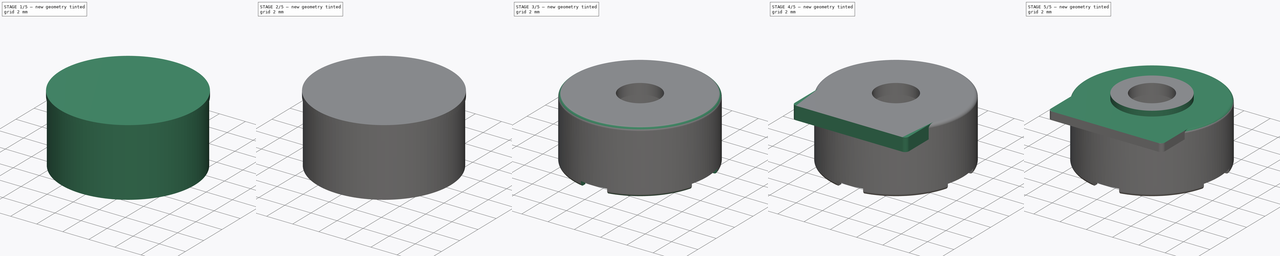
[diagram: build sequence overview — one tinted view per stage of 5, left to right]
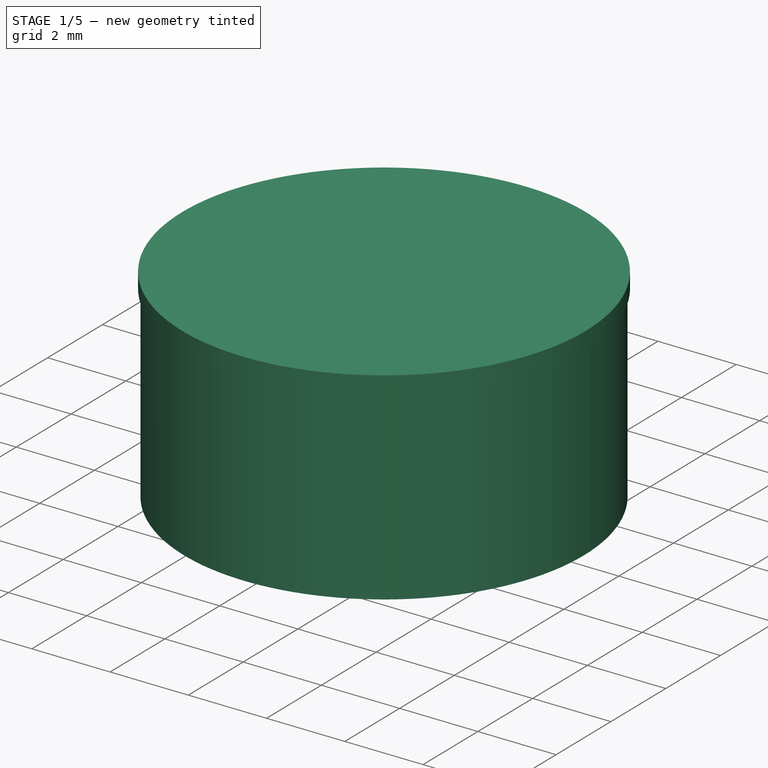
[diagram: stage 1 of 5 — iso view after this stage's code; geometry added in this stage tinted green]
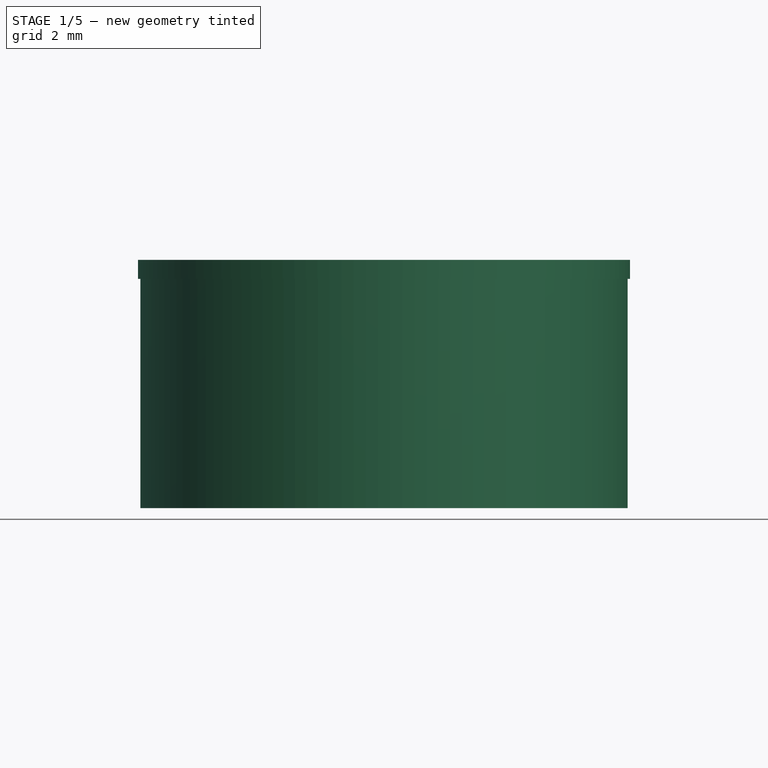
[diagram: stage 1 of 5 — front view after this stage's code; geometry added in this stage tinted green]
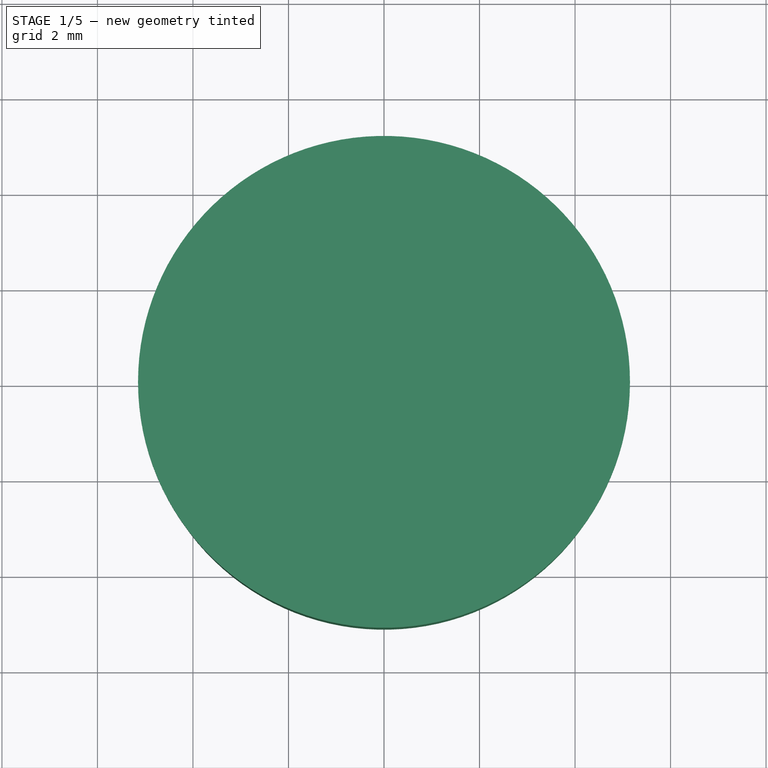
[diagram: stage 1 of 5 — top view after this stage's code; geometry added in this stage tinted green]
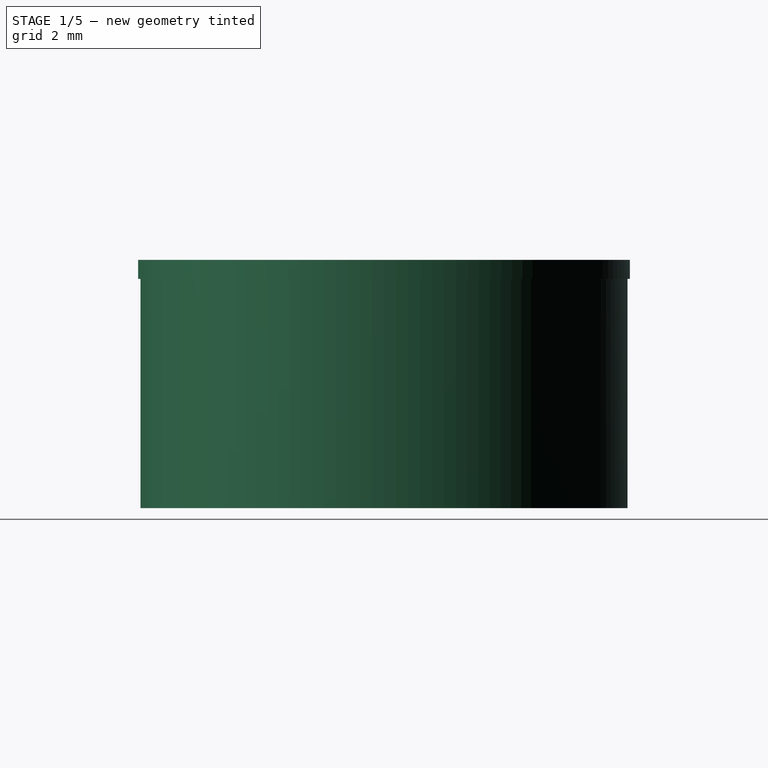
[diagram: stage 1 of 5 — right view after this stage's code; geometry added in this stage tinted green]
FCSTD DOCUMENT  (FreeCAD 0.16R6703 (Git))
Label: Core
License: CreativeCommons Attribution-ShareAlike
LicenseURL: http://creativecommons.org/licenses/by-sa/4.0/
objects: Part::Cylinder×5, Sketcher::SketchObject×4, Part::Cut×3, PartDesign::Pocket×3, Part::MultiCommon×3, Part::MultiFuse×2, Part::Fillet×2, PartDesign::Pad×1
note: 27 computed .brp shape members not serialized (recipe doc carries the construction recipe); baked Part::Feature solids carry a one-line shape summary decoded from their .brp

FEATURE [Part::Cylinder] Cylinder001
  Angle = 360
  Height = 0.8
  Placement = pos=(0,0,4) rot=(0,0,1;0rad)
  Radius = 1.5
FEATURE [Part::Cylinder] Cylinder002
  Angle = 360
  Height = 4.8
  Radius = 5.1
FEATURE [Part::Cylinder] Cylinder003
  Angle = 360
  Height = 0.8
  Radius = 4.62
FEATURE [Part::Cylinder] Cylinder004
  Angle = 360
  Height = 0.4
  Placement = pos=(0,0,4.8) rot=(0,0,1;0rad)
  Radius = 5.15
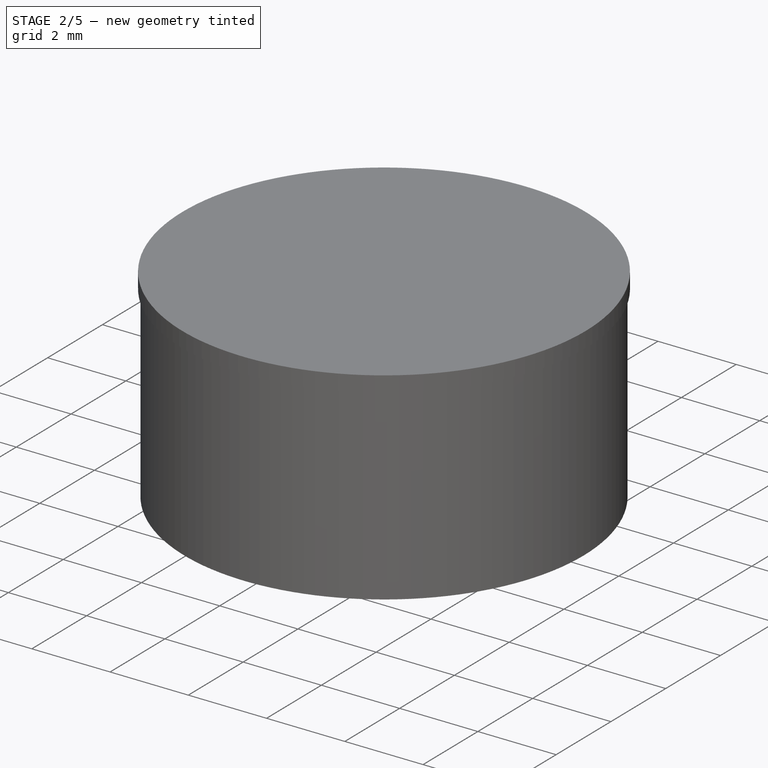
[diagram: stage 2 of 5 — iso view after this stage's code; geometry added in this stage tinted green]
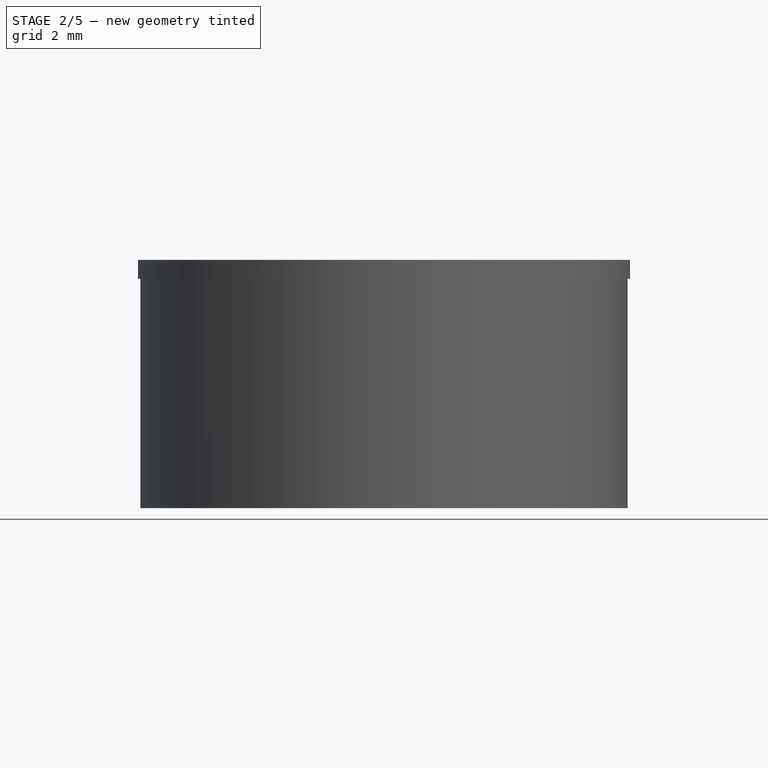
[diagram: stage 2 of 5 — front view after this stage's code; geometry added in this stage tinted green]
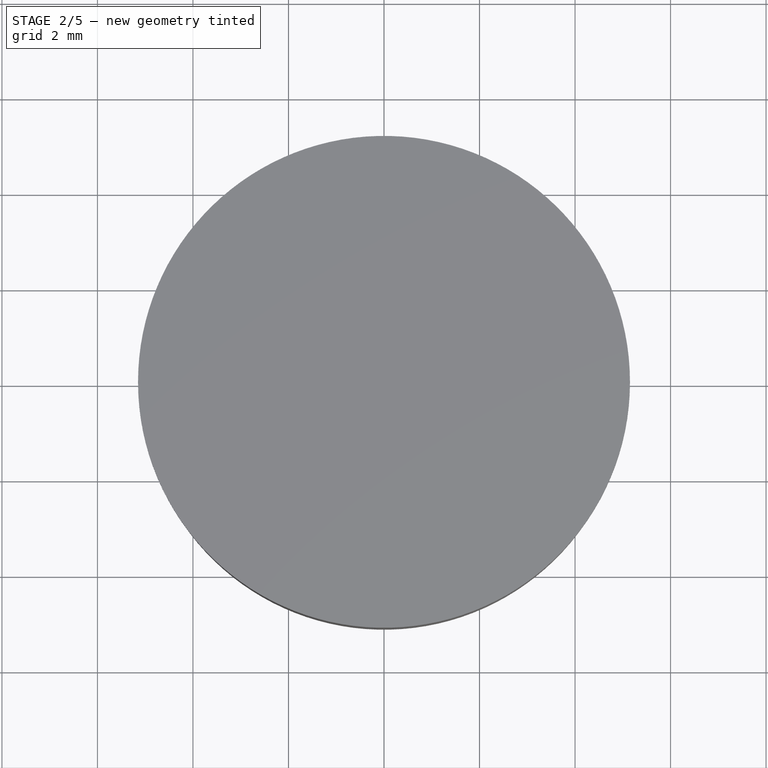
[diagram: stage 2 of 5 — top view after this stage's code; geometry added in this stage tinted green]
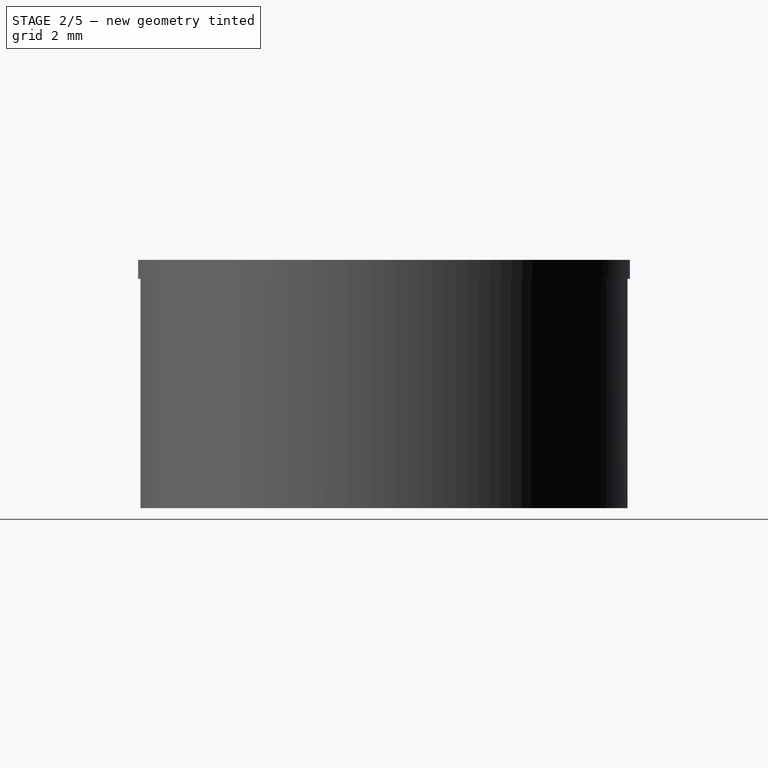
[diagram: stage 2 of 5 — right view after this stage's code; geometry added in this stage tinted green]
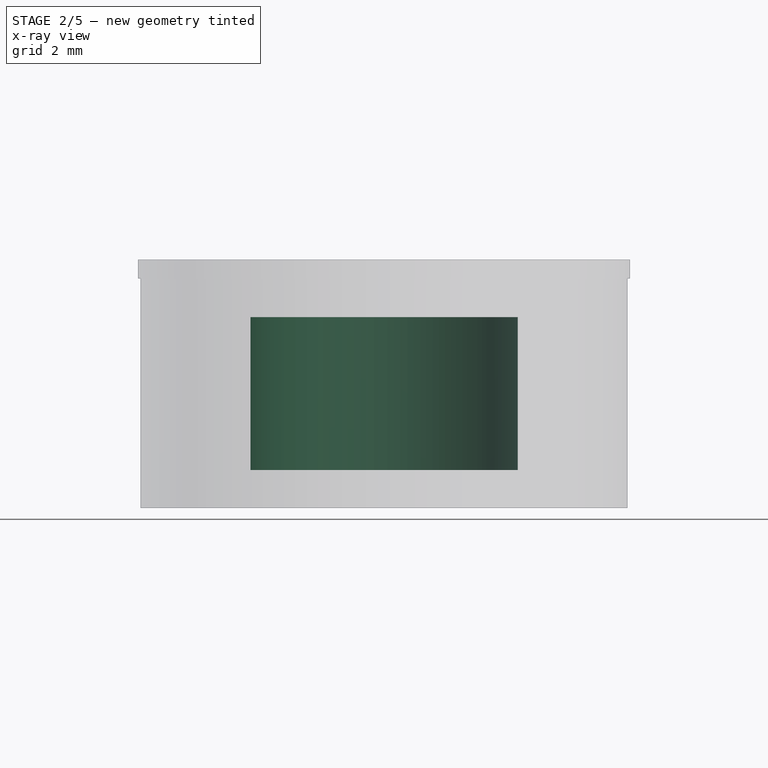
[diagram: stage 2 of 5 — x-ray composite at the front view; earlier geometry ghosted, this stage's added geometry solid]
FEATURE [Part::Cylinder] Cylinder
  Angle = 360
  Height = 4
  Radius = 2.8
FEATURE [Part::MultiFuse] Fusion
  Shapes = -> [Cylinder,Cylinder001]
FEATURE [Part::Cut] Cut
  Base = -> Cylinder002
  Tool = -> Fusion
FEATURE [Part::Cut] Cut001
  Base = -> Cut
  Tool = -> Cylinder003
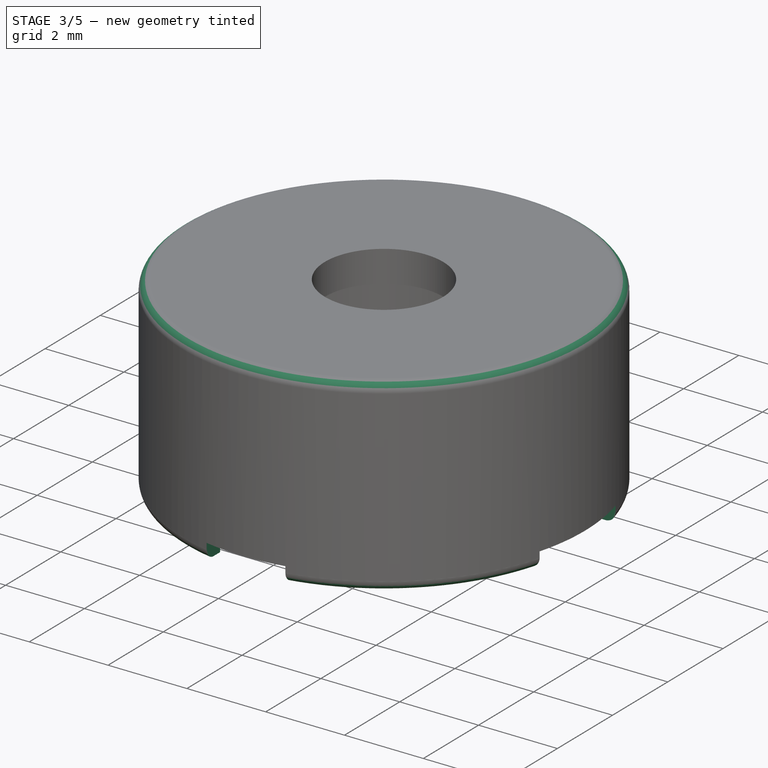
[diagram: stage 3 of 5 — iso view after this stage's code; geometry added in this stage tinted green]
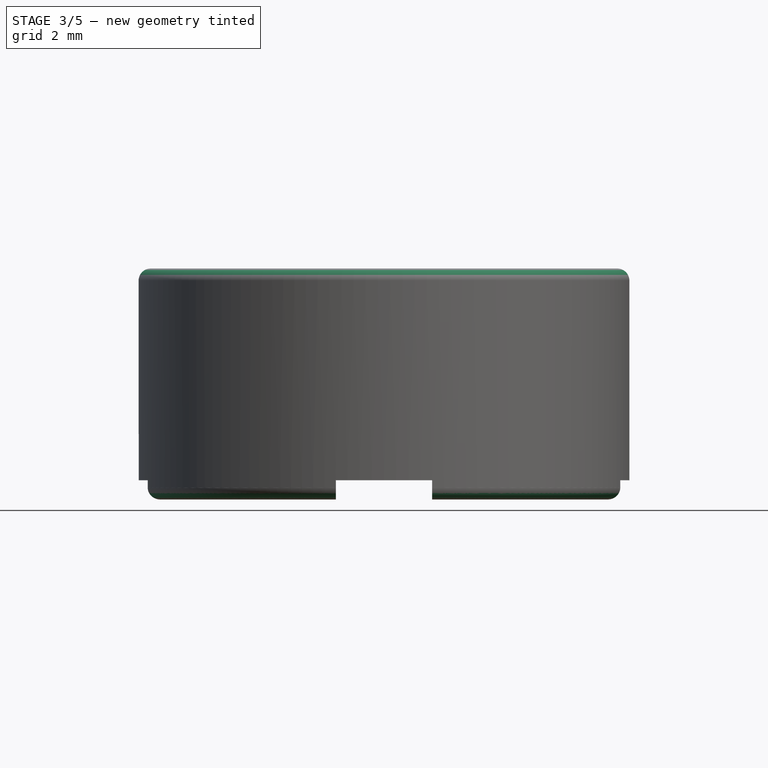
[diagram: stage 3 of 5 — front view after this stage's code; geometry added in this stage tinted green]
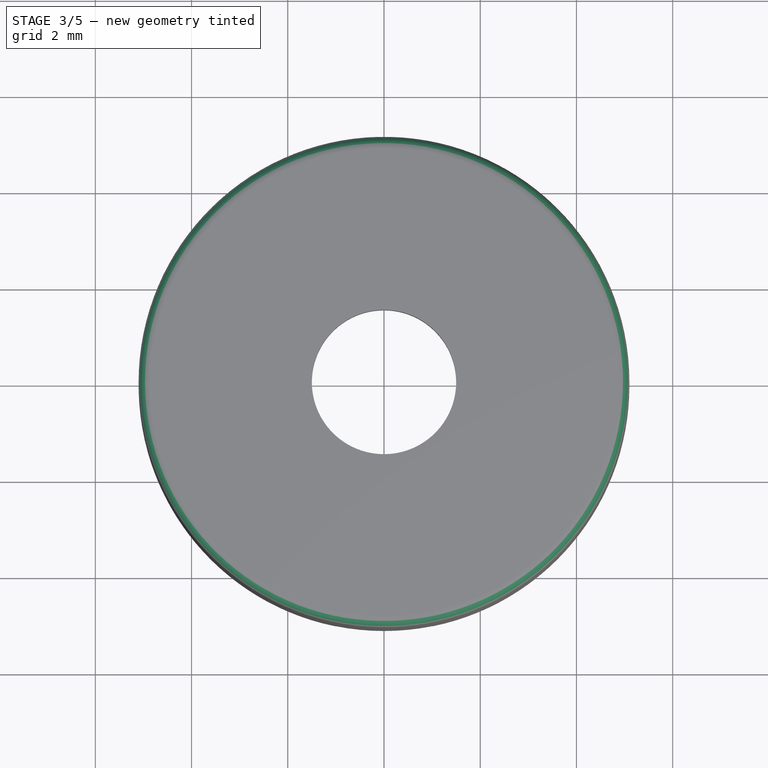
[diagram: stage 3 of 5 — top view after this stage's code; geometry added in this stage tinted green]
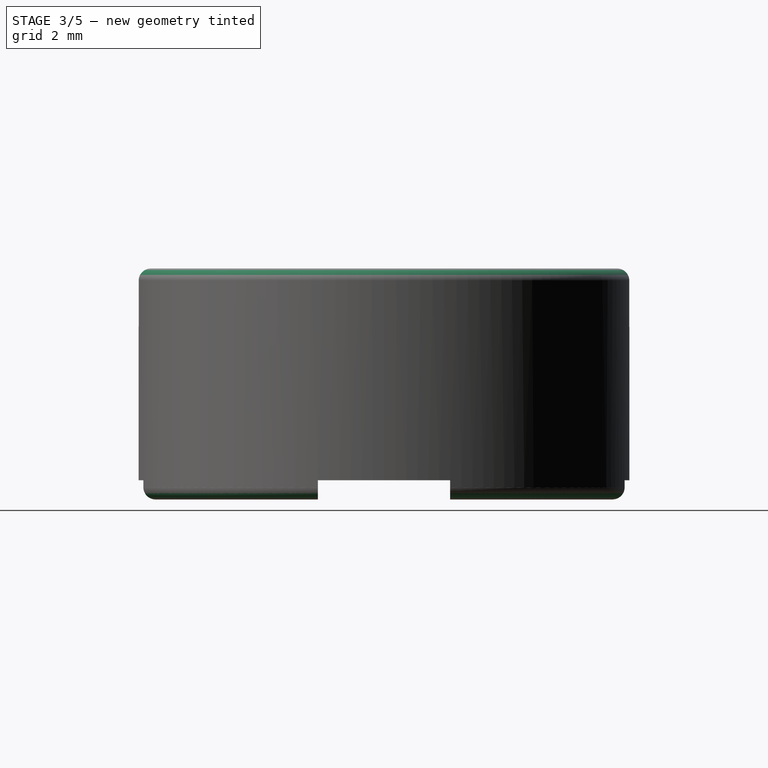
[diagram: stage 3 of 5 — right view after this stage's code; geometry added in this stage tinted green]
FEATURE [Part::Cut] Cut002
  Base = -> Cut001
  Tool = -> Cylinder004
FEATURE [Part::Fillet] Fillet
  Base = -> Cut002
  Edges = 2 edges r=0.25: [Edge2,Edge3]
FEATURE [Sketcher::SketchObject] Sketch
  ExternalGeometry = -> [Fillet]
  Placement = pos=(0,0,0) rot=(1,0,0;3.14159rad)
  Support = -> Fillet [Face4]
  sketch-geometry (16):
    g0: LineSegment StartX=-1 StartY=-4.51048 StartZ=0 EndX=-1 EndY=-6.26048 EndZ=0
    g1: LineSegment StartX=-1 StartY=-6.26048 StartZ=0 EndX=1 EndY=-6.26048 EndZ=0
    g2: LineSegment StartX=1 StartY=-6.26048 StartZ=0 EndX=1 EndY=-4.51048 EndZ=0
    g3: LineSegment StartX=-1 StartY=4.51048 StartZ=0 EndX=-1 EndY=6.26048 EndZ=0
    g4: LineSegment StartX=-1 StartY=6.26048 StartZ=0 EndX=1 EndY=6.26048 EndZ=0
    g5: LineSegment StartX=1 StartY=6.26048 StartZ=0 EndX=1 EndY=4.51048 EndZ=0
    g6: LineSegment StartX=4.41064 StartY=1.375 StartZ=0 EndX=6.16064 EndY=1.375 EndZ=0
    g7: LineSegment StartX=6.16064 StartY=1.375 StartZ=0 EndX=6.16064 EndY=-1.375 EndZ=0
    g8: LineSegment StartX=6.16064 StartY=-1.375 StartZ=0 EndX=4.41064 EndY=-1.375 EndZ=0
    g9: LineSegment StartX=-4.41064 StartY=1.375 StartZ=0 EndX=-6.16064 EndY=1.375 EndZ=0
    g10: LineSegment StartX=-6.16064 StartY=1.375 StartZ=0 EndX=-6.16064 EndY=-1.375 EndZ=0
    g11: LineSegment StartX=-6.16064 StartY=-1.375 StartZ=0 EndX=-4.41064 EndY=-1.375 EndZ=0
    g12: LineSegment StartX=-1 StartY=4.51048 StartZ=0 EndX=1 EndY=4.51048 EndZ=0
    g13: LineSegment StartX=4.41064 StartY=1.375 StartZ=0 EndX=4.41064 EndY=-1.375 EndZ=0
    g14: LineSegment StartX=-4.41064 StartY=1.375 StartZ=0 EndX=-4.41064 EndY=-1.375 EndZ=0
    g15: LineSegment StartX=-1 StartY=-4.51048 StartZ=0 EndX=1 EndY=-4.51048 EndZ=0
  constraints (48):
    c: PointOnObject(g0,g-3)
    c: Vertical(g0)
    c: Coincident(g0,g1)
    c: Horizontal(g1)
    c: Coincident(g1,g2)
    c: PointOnObject(g2,g-3)
    c: Vertical(g2)
    c: PointOnObject(g3,g-3)
    c: Vertical(g3)
    c: Coincident(g3,g4)
    c: Horizontal(g4)
    c: Coincident(g4,g5)
    c: PointOnObject(g5,g-3)
    c: Vertical(g5)
    c: Symmetric(g3,g4,g-2)
    c: Symmetric(g0,g1,g-2)
    c: DistanceX(g4,g4) = 2
    c: DistanceY(g5,g5) = 1.75
    c: PointOnObject(g6,g-3)
    c: Horizontal(g6)
    c: Coincident(g6,g7)
    c: Vertical(g7)
    c: Coincident(g7,g8)
    c: PointOnObject(g8,g-3)
    c: Horizontal(g8)
    c: PointOnObject(g9,g-3)
    c: Horizontal(g9)
    c: Coincident(g9,g10)
    c: Vertical(g10)
    c: Coincident(g10,g11)
    c: PointOnObject(g11,g-3)
    c: Horizontal(g11)
    c: Symmetric(g9,g10,g-1)
    c: Symmetric(g6,g7,g-1)
    c: Equal(g9,g6)
    c: Equal(g10,g7)
    c: Equal(g4,g1)
    c: Equal(g5,g2)
    c: DistanceY(g7,g7) = 2.75
    c: DistanceX(g6,g6) = 1.75
    c: Coincident(g12,g3)
    c: Coincident(g12,g5)
    c: Coincident(g13,g6)
    c: Coincident(g13,g8)
    c: Coincident(g14,g9)
    c: Coincident(g14,g11)
    c: Coincident(g15,g0)
    c: Coincident(g15,g2)
FEATURE [PartDesign::Pocket] Pocket
  Length = 0.4
  Sketch = -> Sketch
  Type = 0
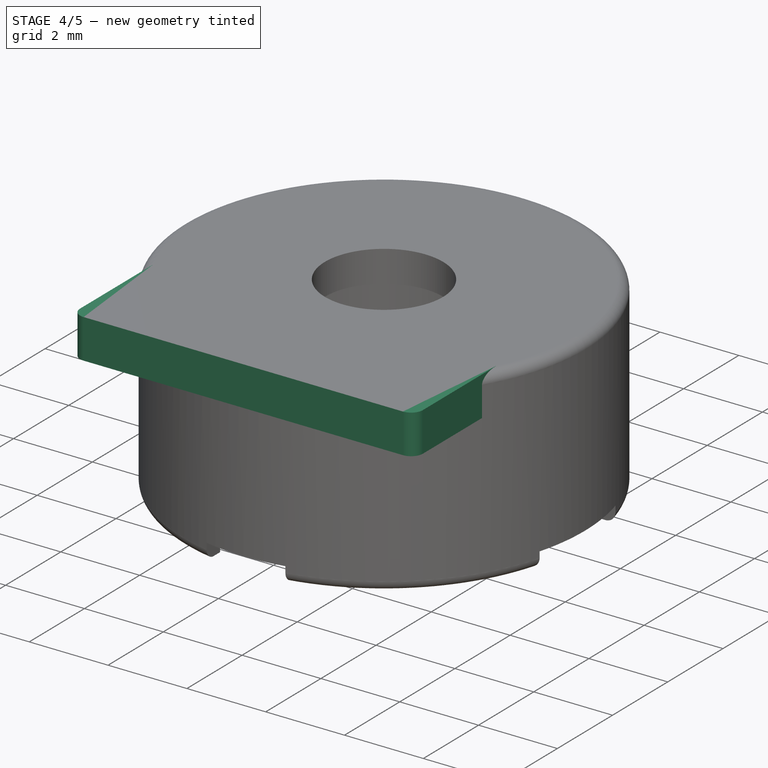
[diagram: stage 4 of 5 — iso view after this stage's code; geometry added in this stage tinted green]
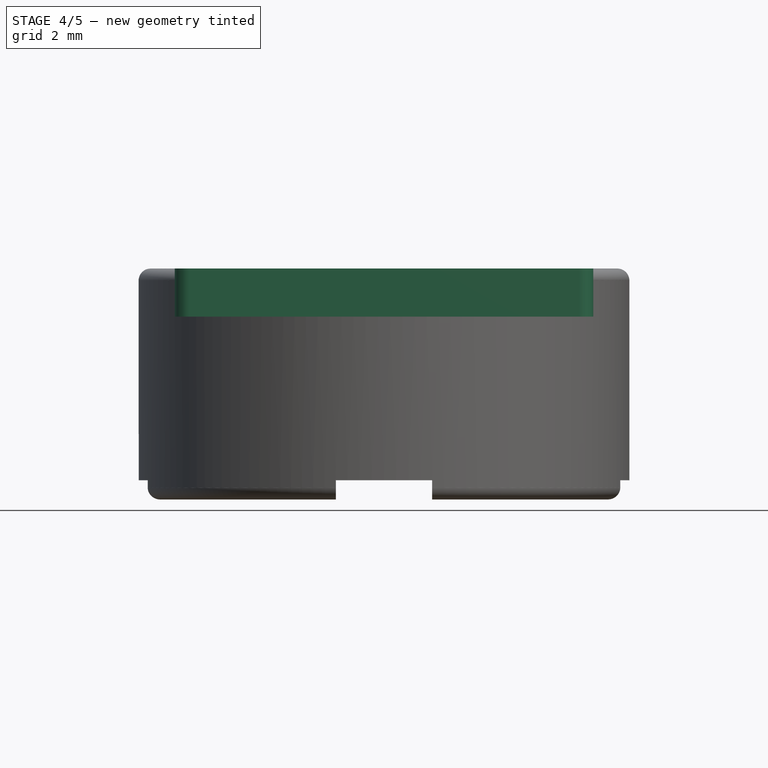
[diagram: stage 4 of 5 — front view after this stage's code; geometry added in this stage tinted green]
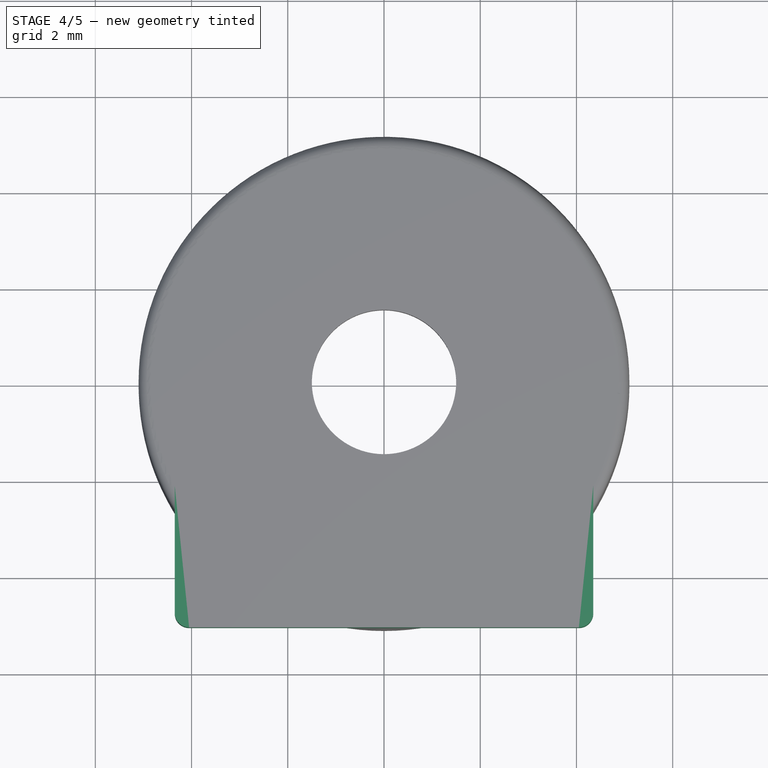
[diagram: stage 4 of 5 — top view after this stage's code; geometry added in this stage tinted green]
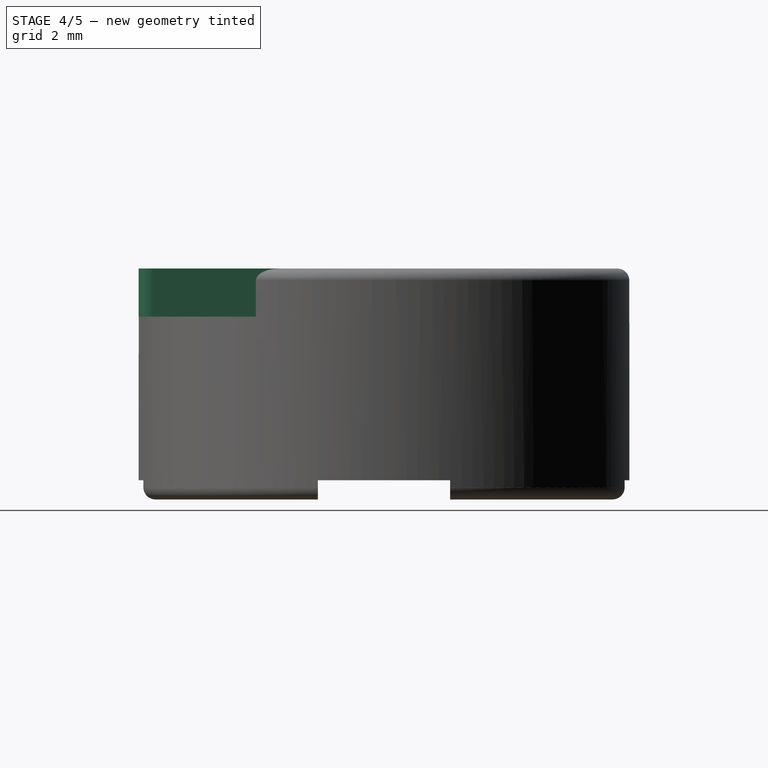
[diagram: stage 4 of 5 — right view after this stage's code; geometry added in this stage tinted green]
FEATURE [Part::MultiCommon] Common
  Shapes = -> [Pocket,Fillet]
FEATURE [Sketcher::SketchObject] Sketch001
  ExternalGeometry = -> [Common]
  Placement = pos=(0,0,4.8) rot=(0,0,1;0rad)
  Support = -> Common [Face24]
  sketch-geometry (4):
    g0: LineSegment StartX=-4.35 StartY=-2.14476 StartZ=0 EndX=-4.35 EndY=-5.1 EndZ=0
    g1: LineSegment StartX=-4.35 StartY=-5.1 StartZ=0 EndX=4.35 EndY=-5.1 EndZ=0
    g2: LineSegment StartX=4.35 StartY=-5.1 StartZ=0 EndX=4.35 EndY=-2.14476 EndZ=0
    g3: ArcOfCircle CenterX=0 CenterY=0 CenterZ=0 NormalX=0 NormalY=0 NormalZ=1 Radius=4.85 StartAngle=3.59966 EndAngle=5.82511
  constraints (13):
    c: PointOnObject(g0,g-3)
    c: Vertical(g0)
    c: Coincident(g0,g1)
    c: Horizontal(g1)
    c: Coincident(g1,g2)
    c: PointOnObject(g2,g-3)
    c: Vertical(g2)
    c: Coincident(g3,g-1)
    c: Coincident(g3,g0)
    c: Coincident(g3,g2)
    c: Symmetric(g0,g1,g-2)
    c: DistanceX(g1,g1) = 8.7
    c: DistanceY(g2,g2) = 2.95524
FEATURE [PartDesign::Pocket] Pocket001
  Length = 1
  Sketch = -> Sketch001
  Type = 0
FEATURE [Part::MultiCommon] Common001
  Shapes = -> [Common,Pocket001]
FEATURE [Sketcher::SketchObject] Sketch002
  ExternalGeometry = -> [Common001]
  Placement = pos=(0,0,3.8) rot=(0,0,1;0rad)
  Support = -> Common001 [Face19]
  sketch-geometry (6):
    g0: LineSegment StartX=-4.35 StartY=-2.14476 StartZ=0 EndX=-4.35 EndY=-4.80068 EndZ=0
    g1: LineSegment StartX=-4.05067 StartY=-5.1 StartZ=0 EndX=4.05067 EndY=-5.1 EndZ=0
    g2: LineSegment StartX=4.35 StartY=-4.80068 StartZ=0 EndX=4.35 EndY=-2.14476 EndZ=0
    g3: ArcOfCircle CenterX=0 CenterY=0 CenterZ=0 NormalX=0 NormalY=0 NormalZ=1 Radius=4.85 StartAngle=3.59966 EndAngle=5.82511
    g4: ArcOfCircle CenterX=4.05067 CenterY=-4.80068 CenterZ=0 NormalX=0 NormalY=0 NormalZ=1 Radius=0.299326 StartAngle=4.71239 EndAngle=6.28319
    g5: ArcOfCircle CenterX=-4.05067 CenterY=-4.80068 CenterZ=0 NormalX=0 NormalY=0 NormalZ=1 Radius=0.299326 StartAngle=3.14159 EndAngle=4.71239
  constraints (15):
    c: Vertical(g0)
    c: Horizontal(g1)
    c: Vertical(g2)
    c: Coincident(g3,g-1)
    c: Coincident(g3,g0)
    c: Coincident(g3,g2)
    c: Tangent(g1,g4) = -1.5708
    c: Tangent(g2,g4) = -1.5708
    c: Tangent(g0,g5) = -1.5708
    c: Tangent(g1,g5) = -1.5708
    c: DistanceX(g0,g2) = 8.7
    c: DistanceY(g1,g2) = 2.95524
    c: Equal(g5,g4)
    c: Radius(g4) = 0.299326
    c: Symmetric(g1,g1,g-2)
FEATURE [PartDesign::Pad] Pad
  Length = 1
  Length2 = 100
  Sketch = -> Sketch002
  Type = 0
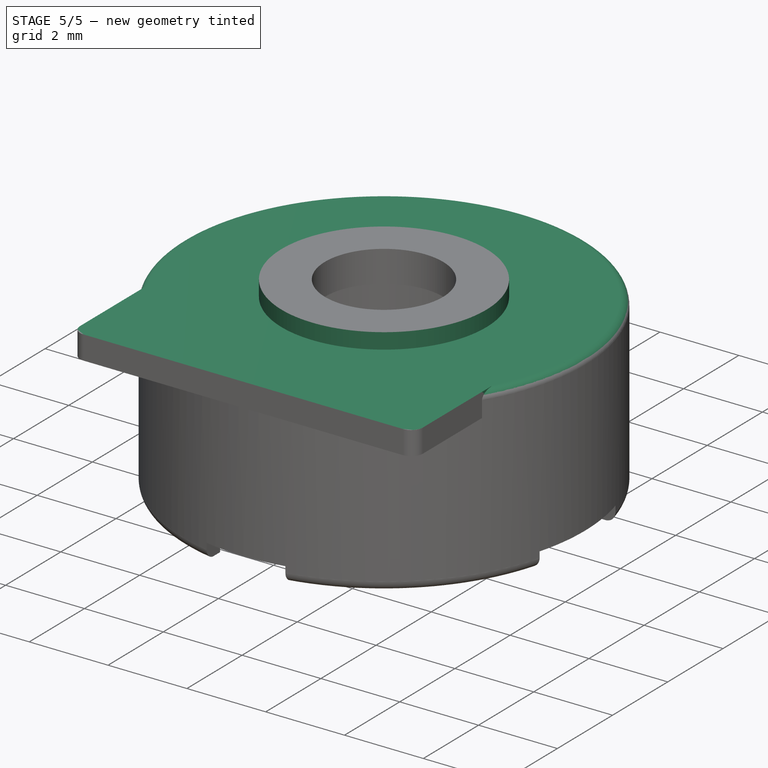
[diagram: stage 5 of 5 — iso view after this stage's code; geometry added in this stage tinted green]
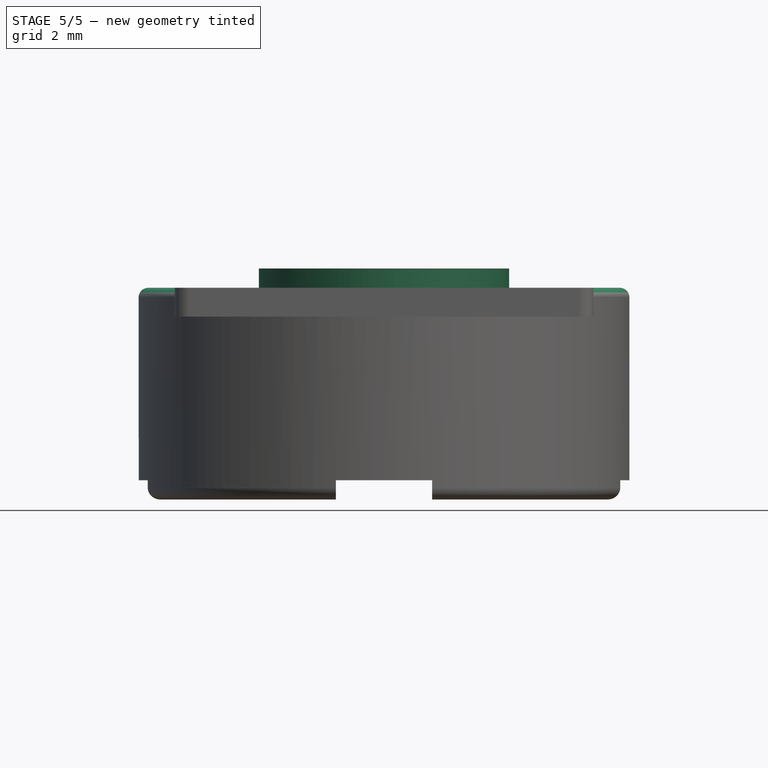
[diagram: stage 5 of 5 — front view after this stage's code; geometry added in this stage tinted green]
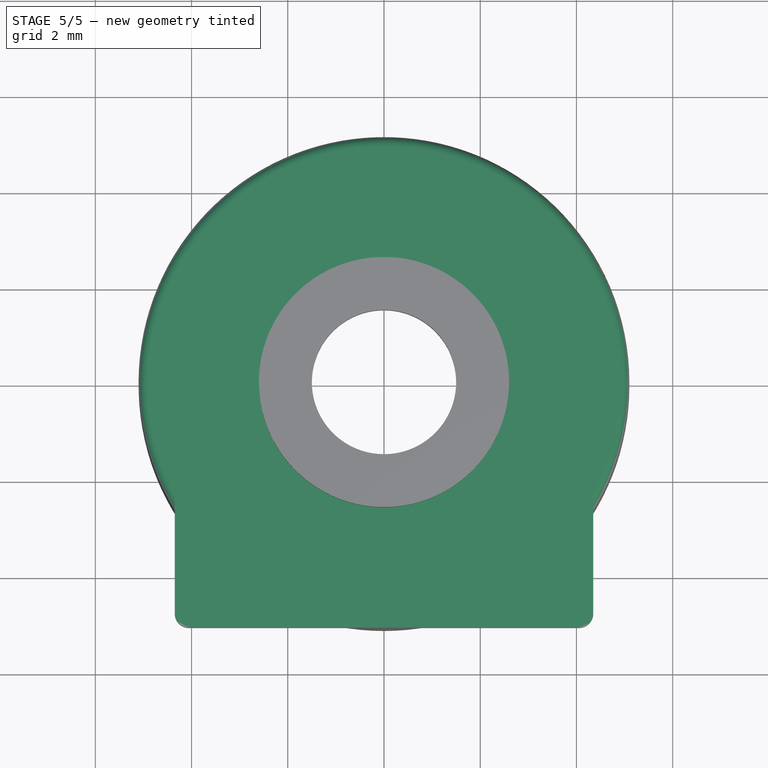
[diagram: stage 5 of 5 — top view after this stage's code; geometry added in this stage tinted green]
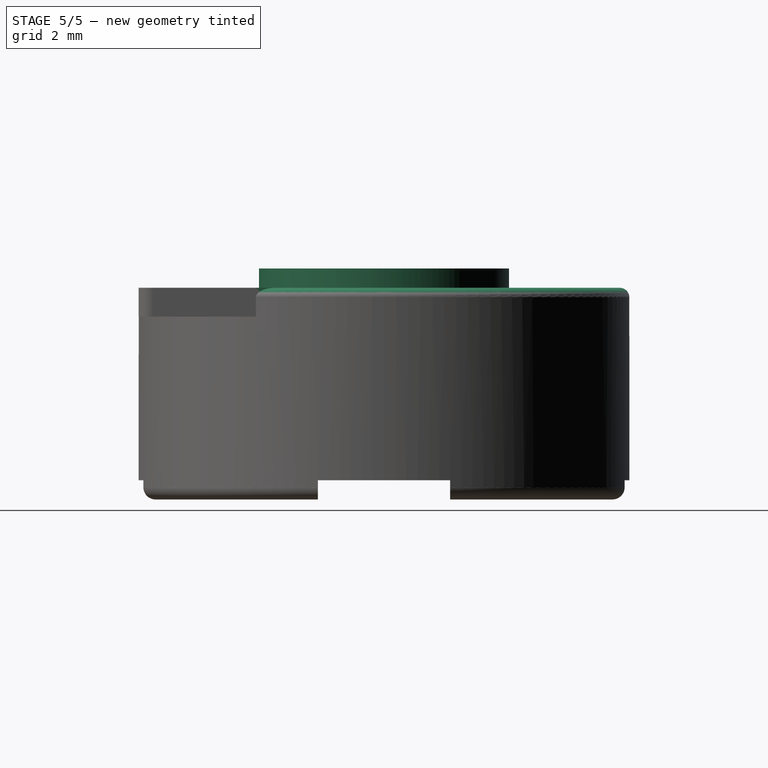
[diagram: stage 5 of 5 — right view after this stage's code; geometry added in this stage tinted green]
FEATURE [Part::MultiFuse] Fusion001
  Shapes = -> [Pad,Common001]
FEATURE [Sketcher::SketchObject] Sketch003
  ExternalGeometry = -> [Fusion001]
  Placement = pos=(0,0,4.8) rot=(0,0,1;0rad)
  Support = -> Fusion001 [Face35]
  sketch-geometry (5):
    g0: LineSegment StartX=-4.35 StartY=-5.1 StartZ=0 EndX=4.35 EndY=-5.1 EndZ=0
    g1: LineSegment StartX=4.35 StartY=-5.1 StartZ=0 EndX=4.35 EndY=-2.75681 EndZ=0
    g2: ArcOfCircle CenterX=0 CenterY=0 CenterZ=0 NormalX=0 NormalY=0 NormalZ=1 Radius=5.15 StartAngle=5.71832 EndAngle=9.98964
    g3: LineSegment StartX=-4.35 StartY=-5.1 StartZ=0 EndX=-4.35 EndY=-2.75681 EndZ=0
    g4: Circle CenterX=0 CenterY=0 CenterZ=0 NormalX=0 NormalY=0 NormalZ=1 Radius=2.6
  constraints (13):
    c: Coincident(g0,g1)
    c: Vertical(g1)
    c: Coincident(g2,g-1)
    c: Coincident(g3,g0)
    c: Coincident(g3,g2)
    c: Vertical(g3)
    c: Symmetric(g0,g0,g-2)
    c: DistanceX(g0,g0) = 8.7
    c: Radius(g2) = 5.15
    c: Coincident(g2,g1)
    c: Tangent(g-3,g0) = -1.5708
    c: Coincident(g4,g-1)
    c: Radius(g4) = 2.6
FEATURE [PartDesign::Pocket] Pocket002
  Length = 0.4
  Sketch = -> Sketch003
  Type = 0
FEATURE [Part::MultiCommon] Common002
  Shapes = -> [Fusion001,Pocket002]
FEATURE [Part::Fillet] Fillet001
  Base = -> Common002
  Edges = 2 edges r=0.2: [Edge17,Edge18]
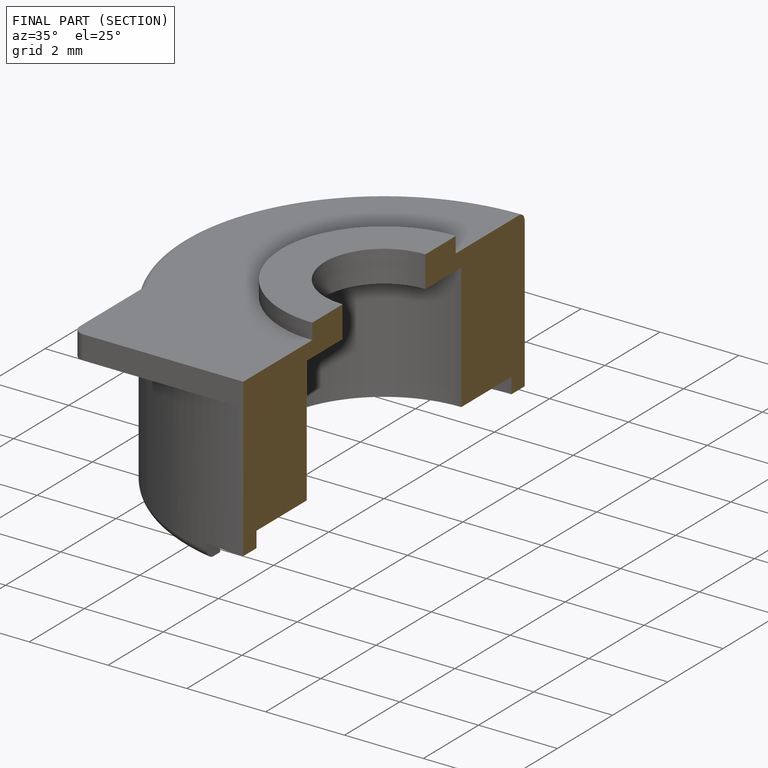
[diagram: finished part — half-section view (interior)]
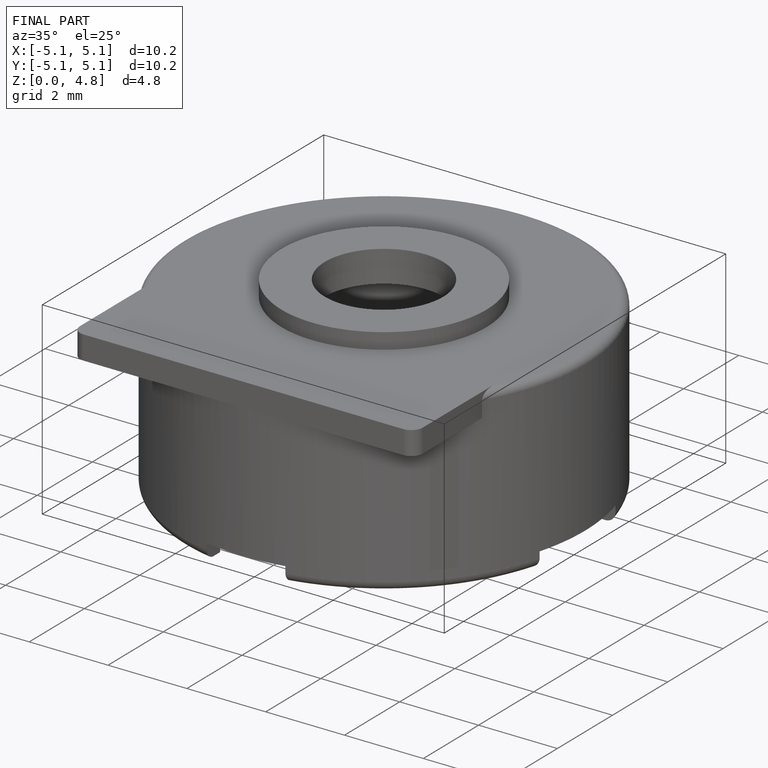
[diagram: finished part — iso view with bounding-box wireframe]
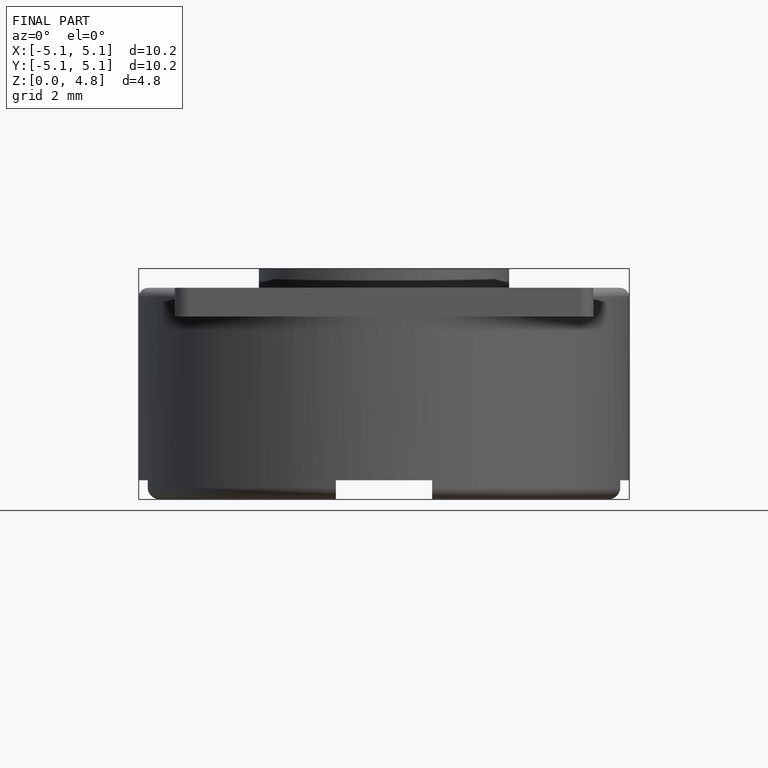
[diagram: finished part — front view with bounding-box wireframe]
